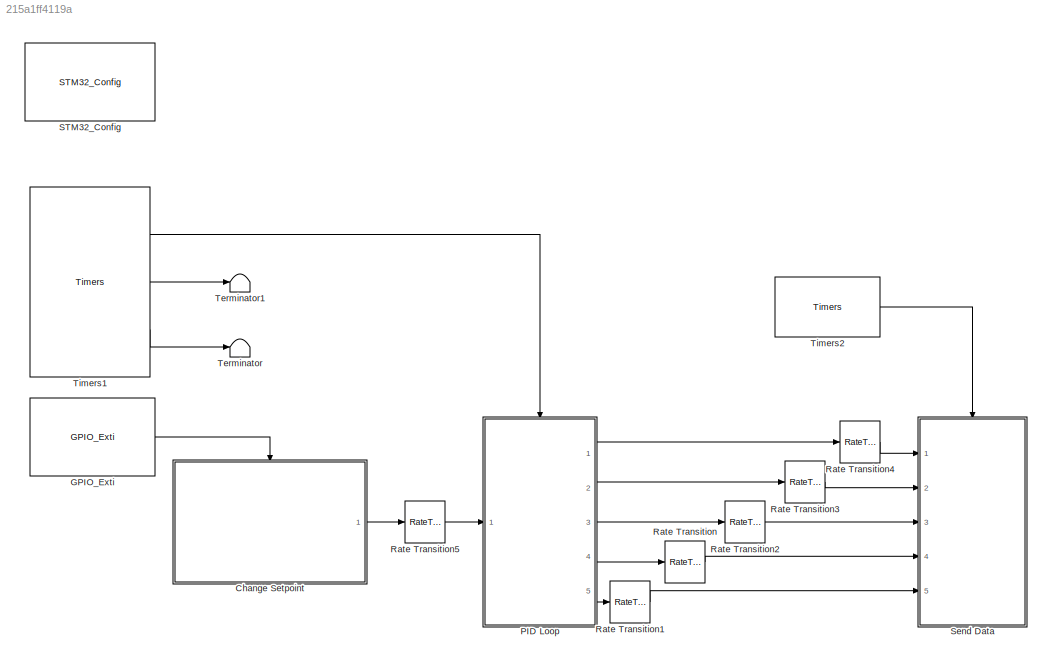
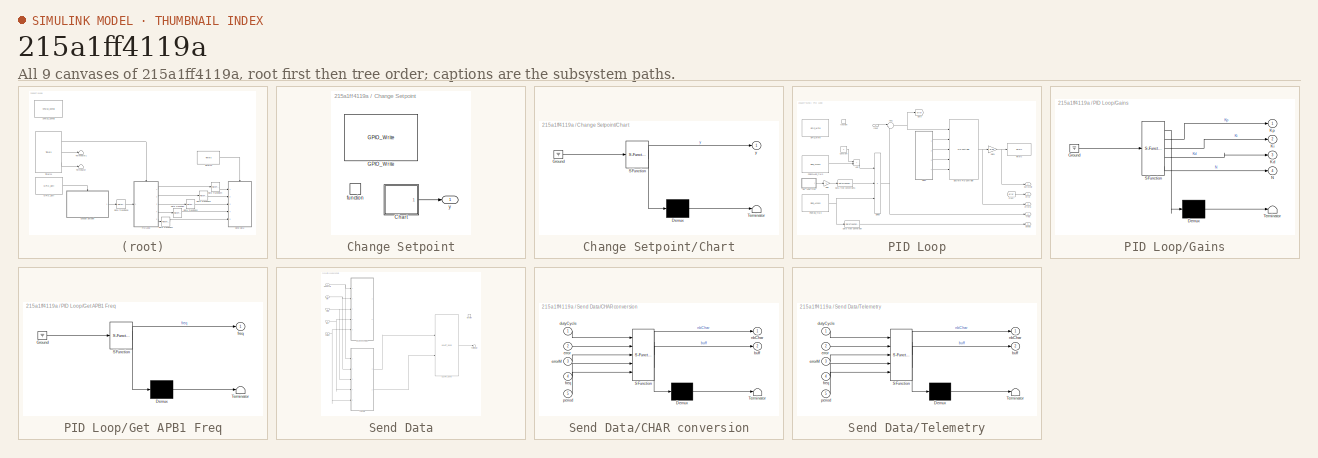
[diagram: thumbnail index - all 9 canvases of the model, root first then tree order]
MODEL slx_215a1ff4119a
KIND model
CONFIG AbsTol = auto
CONFIG EnableMultiTasking = on
CONFIG FixedStep = auto
CONFIG MaxStep = auto
CONFIG MinStep = auto
CONFIG RelTol = 1e-3
CONFIG SampleTimeConstraint = Unconstrained
CONFIG Solver = FixedStepDiscrete
CONFIG SolverName = FixedStepDiscrete
CONFIG StartTime = 0.0
CONFIG StopTime = 10.0
BLOCK [SubSystem] Change Setpoint
  Ports = [0, 1, 0, 1]
  RequestExecContextInheritance = off
  TreatAsAtomicUnit = on
BLOCK [SubSystem] Change Setpoint/Chart
  ErrorFcn = Stateflow.Translate.translate
  PermitHierarchicalResolution = ExplicitOnly
  Ports = [0, 1]
  RequestExecContextInheritance = off
  SFBlockType = Chart
  TreatAsAtomicUnit = on
BLOCK [Demux] Change Setpoint/Chart/ Demux 
  Outputs = 1
  Ports = [1, 1]
BLOCK [Ground] Change Setpoint/Chart/ Ground 
BLOCK [S-Function] Change Setpoint/Chart/ SFunction 
  EnableBusSupport = on
  FunctionName = sf_sfun
  PortCounts = [1 2]
  Ports = [1, 2]
  SFcnIsStateOwnerBlock = off
  SFunctionDeploymentMode = off
  Tag = Stateflow S-Function 5
BLOCK [Terminator] Change Setpoint/Chart/ Terminator 
BLOCK [Outport] Change Setpoint/Chart/y
BLOCK [Reference] Change Setpoint/GPIO_Write  REF=GPIO_Lib/GPIO_Write
  NameLocation = top
  Ports = []
  SourceBlock = GPIO_Lib/GPIO_Write
  SourceProductName = Target Support Package - STM32 Adapter
  SourceType = GPIO_Write
BLOCK [TriggerPort] Change Setpoint/function
  OutputDataType = int8
  Ports = []
  StatesWhenEnabling = held
  TriggerType = function-call
  VariantControl = Variant
BLOCK [Outport] Change Setpoint/y
BLOCK [Reference] GPIO_Exti  REF=GPIO_Lib/GPIO_Exti
  NameLocation = top
  Ports = [0, 1]
  SourceBlock = GPIO_Lib/GPIO_Exti
  SourceProductName = Target Support Package - STM32 Adapter
  SourceType = GPIO_Exti
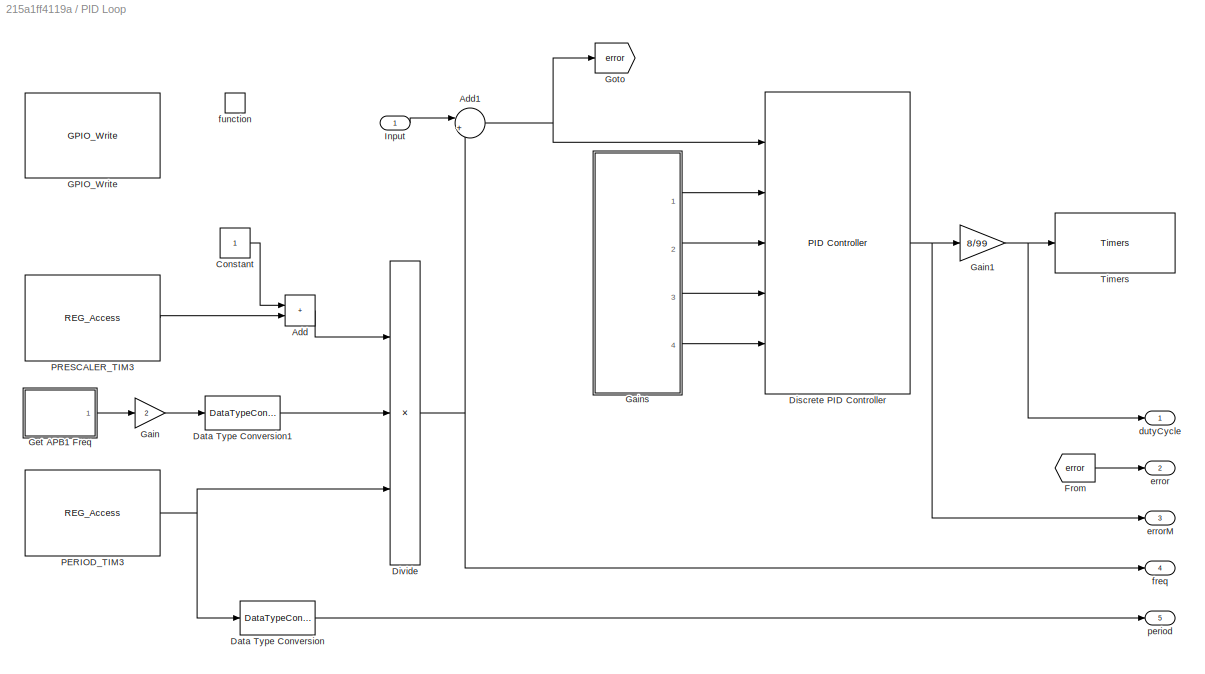
BLOCK [SubSystem] PID Loop
  Ports = [1, 5, 0, 1]
  RequestExecContextInheritance = off
  TreatAsAtomicUnit = on
BLOCK [Sum] PID Loop/Add
  IconShape = rectangular
  OutDataTypeStr = double
  Ports = [2, 1]
BLOCK [Sum] PID Loop/Add1
  Inputs = |+-
  OutDataTypeStr = double
  Ports = [2, 1]
BLOCK [Constant] PID Loop/Constant
  OutDataTypeStr = double
BLOCK [DataTypeConversion] PID Loop/Data Type Conversion
  OutDataTypeStr = uint32
  RndMeth = Floor
  SaturateOnIntegerOverflow = off
BLOCK [DataTypeConversion] PID Loop/Data Type Conversion1
  OutDataTypeStr = double
  RndMeth = Floor
  SaturateOnIntegerOverflow = off
BLOCK [Reference] PID Loop/Discrete PID Controller  REF=simulink/Continuous/PID Controller
  NameLocation = top
  Ports = [5, 1]
  SourceBlock = simulink/Continuous/PID Controller
  SourceProductBaseCode = SL
  SourceType = PID 1dof
BLOCK [Product] PID Loop/Divide
  Inputs = /*/
  OutDataTypeStr = double
  Ports = [3, 1]
BLOCK [From] PID Loop/From
  GotoTag = error
BLOCK [Reference] PID Loop/GPIO_Write  REF=GPIO_Lib/GPIO_Write
  NameLocation = top
  Ports = []
  SourceBlock = GPIO_Lib/GPIO_Write
  SourceProductName = Target Support Package - STM32 Adapter
  SourceType = GPIO_Write
BLOCK [Gain] PID Loop/Gain
  Gain = 2
  OutDataTypeStr = double
  ParamDataTypeStr = double
BLOCK [Gain] PID Loop/Gain1
  Gain = 8/99
  OutDataTypeStr = double
BLOCK [SubSystem] PID Loop/Gains
  ErrorFcn = Stateflow.Translate.translate
  PermitHierarchicalResolution = ExplicitOnly
  Ports = [0, 4]
  RequestExecContextInheritance = off
  SFBlockType = MATLAB Function
  TreatAsAtomicUnit = on
BLOCK [Demux] PID Loop/Gains/ Demux 
  Outputs = 1
  Ports = [1, 1]
BLOCK [Ground] PID Loop/Gains/ Ground 
BLOCK [S-Function] PID Loop/Gains/ SFunction 
  EnableBusSupport = on
  FunctionName = sf_sfun
  PortCounts = [1 5]
  Ports = [1, 5]
  SFcnIsStateOwnerBlock = off
  SFunctionDeploymentMode = off
  Tag = Stateflow S-Function 4
BLOCK [Terminator] PID Loop/Gains/ Terminator 
BLOCK [Outport] PID Loop/Gains/Kd
  Port = 3
BLOCK [Outport] PID Loop/Gains/Ki
  Port = 2
BLOCK [Outport] PID Loop/Gains/Kp
BLOCK [Outport] PID Loop/Gains/N
  Port = 4
BLOCK [SubSystem] PID Loop/Get APB1 Freq
  ErrorFcn = Stateflow.Translate.translate
  PermitHierarchicalResolution = ExplicitOnly
  Ports = [0, 1]
  RequestExecContextInheritance = off
  SFBlockType = MATLAB Function
  TreatAsAtomicUnit = on
BLOCK [Demux] PID Loop/Get APB1 Freq/ Demux 
  Outputs = 1
  Ports = [1, 1]
BLOCK [Ground] PID Loop/Get APB1 Freq/ Ground 
BLOCK [S-Function] PID Loop/Get APB1 Freq/ SFunction 
  EnableBusSupport = on
  FunctionName = sf_sfun
  PortCounts = [1 2]
  Ports = [1, 2]
  SFcnIsStateOwnerBlock = off
  SFunctionDeploymentMode = off
  Tag = Stateflow S-Function 1
BLOCK [Terminator] PID Loop/Get APB1 Freq/ Terminator 
BLOCK [Outport] PID Loop/Get APB1 Freq/freq
BLOCK [Goto] PID Loop/Goto
  GotoTag = error
BLOCK [Inport] PID Loop/Input
BLOCK [Reference] PID Loop/PERIOD_TIM3  REF=REG_Lib/REG_Access
  NameLocation = top
  Ports = [0, 1]
  SourceBlock = REG_Lib/REG_Access
  SourceProductName = Target Support Package - STM32 Adapter
  SourceType = REG_Access
BLOCK [Reference] PID Loop/PRESCALER_TIM3  REF=REG_Lib/REG_Access
  NameLocation = top
  Ports = [0, 1]
  SourceBlock = REG_Lib/REG_Access
  SourceProductName = Target Support Package - STM32 Adapter
  SourceType = REG_Access
BLOCK [Reference] PID Loop/Timers  REF=TIMERS_Lib/Timers
  NameLocation = top
  Ports = [1]
  SourceBlock = TIMERS_Lib/Timers
  SourceProductName = Target Support Package - STM32 Adapter
  SourceType = Timers
BLOCK [Outport] PID Loop/dutyCycle
BLOCK [Outport] PID Loop/error
  Port = 2
BLOCK [Outport] PID Loop/errorM
  Port = 3
BLOCK [Outport] PID Loop/freq
  Port = 4
BLOCK [TriggerPort] PID Loop/function
  Ports = []
  StatesWhenEnabling = held
  TriggerType = function-call
  VariantControl = Variant
BLOCK [Outport] PID Loop/period
  Port = 5
BLOCK [RateTransition] Rate Transition
  Deterministic = off
BLOCK [RateTransition] Rate Transition1
  Deterministic = off
BLOCK [RateTransition] Rate Transition2
  Deterministic = off
BLOCK [RateTransition] Rate Transition3
  Deterministic = off
BLOCK [RateTransition] Rate Transition4
  Deterministic = off
BLOCK [RateTransition] Rate Transition5
  Deterministic = off
BLOCK [Reference] STM32_Config  REF=STM32_Config_Lib/STM32_Config
  NameLocation = top
  Ports = []
  Priority = 0
  SourceBlock = STM32_Config_Lib/STM32_Config
  SourceProductName = Target Support Package - STM32 Adapter
  SourceType = STM32_Config
BLOCK [SubSystem] Send Data
  Ports = [5, 0, 0, 1]
  RequestExecContextInheritance = off
  TreatAsAtomicUnit = on
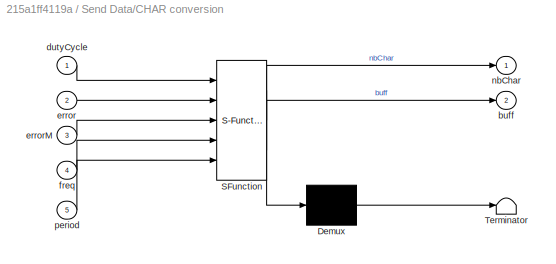
BLOCK [SubSystem] Send Data/CHAR conversion
  Commented = on
  ErrorFcn = Stateflow.Translate.translate
  PermitHierarchicalResolution = ExplicitOnly
  Ports = [5, 2]
  RequestExecContextInheritance = off
  SFBlockType = MATLAB Function
  TreatAsAtomicUnit = on
BLOCK [Demux] Send Data/CHAR conversion/ Demux 
  Outputs = 1
  Ports = [1, 1]
BLOCK [S-Function] Send Data/CHAR conversion/ SFunction 
  EnableBusSupport = on
  FunctionName = sf_sfun
  PortCounts = [5 3]
  Ports = [5, 3]
  SFcnIsStateOwnerBlock = off
  SFunctionDeploymentMode = off
  Tag = Stateflow S-Function 2
BLOCK [Terminator] Send Data/CHAR conversion/ Terminator 
BLOCK [Outport] Send Data/CHAR conversion/buff
  Port = 2
  VectorParamsAs1DForOutWhenUnconnected = off
BLOCK [Inport] Send Data/CHAR conversion/dutyCycle
BLOCK [Inport] Send Data/CHAR conversion/error
  Port = 2
BLOCK [Inport] Send Data/CHAR conversion/errorM
  Port = 3
BLOCK [Inport] Send Data/CHAR conversion/freq
  Port = 4
BLOCK [Outport] Send Data/CHAR conversion/nbChar
  VectorParamsAs1DForOutWhenUnconnected = off
BLOCK [Inport] Send Data/CHAR conversion/period
  Port = 5
BLOCK [SubSystem] Send Data/Telemetry
  ErrorFcn = Stateflow.Translate.translate
  PermitHierarchicalResolution = ExplicitOnly
  Ports = [5, 2]
  RequestExecContextInheritance = off
  SFBlockType = MATLAB Function
  TreatAsAtomicUnit = on
BLOCK [Demux] Send Data/Telemetry/ Demux 
  Outputs = 1
  Ports = [1, 1]
BLOCK [S-Function] Send Data/Telemetry/ SFunction 
  EnableBusSupport = on
  FunctionName = sf_sfun
  PortCounts = [5 3]
  Ports = [5, 3]
  SFcnIsStateOwnerBlock = off
  SFunctionDeploymentMode = off
  Tag = Stateflow S-Function 3
BLOCK [Terminator] Send Data/Telemetry/ Terminator 
BLOCK [Outport] Send Data/Telemetry/buff
  Port = 2
  VectorParamsAs1DForOutWhenUnconnected = off
BLOCK [Inport] Send Data/Telemetry/dutyCycle
BLOCK [Inport] Send Data/Telemetry/error
  Port = 2
BLOCK [Inport] Send Data/Telemetry/errorM
  Port = 3
BLOCK [Inport] Send Data/Telemetry/freq
  Port = 4
BLOCK [Outport] Send Data/Telemetry/nbChar
  VectorParamsAs1DForOutWhenUnconnected = off
BLOCK [Inport] Send Data/Telemetry/period
  Port = 5
BLOCK [Terminator] Send Data/Terminator
BLOCK [Reference] Send Data/USART_Send  REF=USART_Lib/USART_Send
  NameLocation = top
  Ports = [2, 1]
  SourceBlock = USART_Lib/USART_Send
  SourceProductName = Target Support Package - STM32 Adapter
  SourceType = USART_Send
BLOCK [Inport] Send Data/dutyCycle
BLOCK [Inport] Send Data/error
  Port = 2
BLOCK [Inport] Send Data/errorM
  Port = 3
BLOCK [Inport] Send Data/freq
  Port = 4
BLOCK [TriggerPort] Send Data/function
  Ports = []
  StatesWhenEnabling = held
  TriggerType = function-call
  VariantControl = Variant
BLOCK [Inport] Send Data/period
  Port = 5
BLOCK [Terminator] Terminator
BLOCK [Terminator] Terminator1
BLOCK [Reference] Timers1  REF=TIMERS_Lib/Timers
  NameLocation = top
  Ports = [0, 3]
  SourceBlock = TIMERS_Lib/Timers
  SourceProductName = Target Support Package - STM32 Adapter
  SourceType = Timers
BLOCK [Reference] Timers2  REF=TIMERS_Lib/Timers
  NameLocation = top
  Ports = [0, 1]
  SourceBlock = TIMERS_Lib/Timers
  SourceProductName = Target Support Package - STM32 Adapter
  SourceType = Timers
LINE Change Setpoint/Chart:1 -> Change Setpoint/y:1
LINE Change Setpoint:1 -> Rate Transition5:1
LINE GPIO_Exti:1 -> Change Setpoint:trigger
NET PID Loop/Add1:1 -> PID Loop/Discrete PID Controller:1, PID Loop/Goto:1
LINE PID Loop/Add:1 -> PID Loop/Divide:1
LINE PID Loop/Constant:1 -> PID Loop/Add:1
LINE PID Loop/Data Type Conversion1:1 -> PID Loop/Divide:2
LINE PID Loop/Data Type Conversion:1 -> PID Loop/period:1
NET PID Loop/Discrete PID Controller:1 -> PID Loop/Gain1:1, PID Loop/errorM:1
NET PID Loop/Divide:1 -> PID Loop/Add1:2, PID Loop/freq:1
LINE PID Loop/From:1 -> PID Loop/error:1
NET PID Loop/Gain1:1 -> PID Loop/Timers:1, PID Loop/dutyCycle:1
LINE PID Loop/Gain:1 -> PID Loop/Data Type Conversion1:1
LINE PID Loop/Gains:1 -> PID Loop/Discrete PID Controller:2
LINE PID Loop/Gains:2 -> PID Loop/Discrete PID Controller:3
LINE PID Loop/Gains:3 -> PID Loop/Discrete PID Controller:4
LINE PID Loop/Gains:4 -> PID Loop/Discrete PID Controller:5
LINE PID Loop/Get APB1 Freq:1 -> PID Loop/Gain:1
LINE PID Loop/Input:1 -> PID Loop/Add1:1
NET PID Loop/PERIOD_TIM3:1 -> PID Loop/Data Type Conversion:1, PID Loop/Divide:3
LINE PID Loop/PRESCALER_TIM3:1 -> PID Loop/Add:2
LINE PID Loop:1 -> Rate Transition4:1
LINE PID Loop:2 -> Rate Transition3:1
LINE PID Loop:3 -> Rate Transition2:1
LINE PID Loop:4 -> Rate Transition:1
LINE PID Loop:5 -> Rate Transition1:1
LINE Rate Transition1:1 -> Send Data:5
LINE Rate Transition2:1 -> Send Data:3
LINE Rate Transition3:1 -> Send Data:2
LINE Rate Transition4:1 -> Send Data:1
LINE Rate Transition5:1 -> PID Loop:1
LINE Rate Transition:1 -> Send Data:4
LINE Send Data/Telemetry:1 -> Send Data/USART_Send:1
LINE Send Data/Telemetry:2 -> Send Data/USART_Send:2
LINE Send Data/USART_Send:1 -> Send Data/Terminator:1
NET Send Data/dutyCycle:1 -> Send Data/CHAR conversion:1, Send Data/Telemetry:1
NET Send Data/error:1 -> Send Data/CHAR conversion:2, Send Data/Telemetry:2
NET Send Data/errorM:1 -> Send Data/CHAR conversion:3, Send Data/Telemetry:3
NET Send Data/freq:1 -> Send Data/CHAR conversion:4, Send Data/Telemetry:4
NET Send Data/period:1 -> Send Data/CHAR conversion:5, Send Data/Telemetry:5
LINE Timers1:1 -> PID Loop:trigger
LINE Timers1:2 -> Terminator1:1
LINE Timers1:3 -> Terminator:1
LINE Timers2:1 -> Send Data:trigger
note: NET lines group one-source signal fan-out (src -> all destinations, sorted); 1:1 wires keep LINE
CHART PID Loop/Get APB1 Freq states=1 transitions=1
  STATE_LABEL 'eML_blk_kernel()'
  STATE_LABEL "SCRIPT:\nfunction freq = fcn()\nif coder.target('Sfun')\n    % Executing in MATLAB, Buff is null\n    freq = double(0);\nelse\n    coder.cinclude('stm32f4xx_hal_rcc.h');\n    \n    % Executing in the generated code.\n    freq = coder.ceval('HAL_RCC_GetPCLK1Freq');\nend\nend\n"
CHART Send Data/CHAR conversion states=1 transitions=1
  STATE_LABEL 'eML_blk_kernel()'
  STATE_LABEL "SCRIPT:\nfunction [nbChar, buff] = convert(dutyCycle,error,errorM,freq,period)\nif coder.target('Sfun')\n    % Executing in MATLAB, Buff is null\n    buff = uint32(0);\n    nbChar = uint16(0);\nelse\n    coder.cinclude('stdio.h');\n    coder.cinclude('main.h');\n    coder.cinclude('getBuffPtr.h');\n\n    % Executing in the generated code.\n    string = char(zeros(1,90));\n    stringSize = uint16(size(string,2)...<+368ch>"
CHART Send Data/Telemetry states=1 transitions=1
  STATE_LABEL 'eML_blk_kernel()'
  STATE_LABEL "SCRIPT:\nfunction [nbChar, buff] = convert(dutyCycle,error,errorM,freq,period)\nif coder.target('Sfun')\n    % Executing in MATLAB, Buff is null\n    buff = uint32(0);\n    nbChar = uint16(0);\nelse\n    coder.cinclude('stdio.h');\n    coder.cinclude('main.h');\n    coder.cinclude('getBuffPtr.h');\n\n    % Executing in the generated code.\n    string = char(zeros(1,50));\n    stringSize = uint16(size(string,2)...<+292ch>"
CHART PID Loop/Gains states=1 transitions=1
  STATE_LABEL 'eML_blk_kernel()'
  STATE_LABEL 'SCRIPT:\nfunction [Kp,Ki,Kd,N] = fcn()\nKp = 15.0;\nKi = 10.0;\nKd = 0.5;\nN = 100.0;\nend\n'
CHART Change Setpoint/Chart states=4 transitions=5
  STATE_LABEL 'S1\ny=150.00;'
  STATE_LABEL 'S2\ny=300.00;'
  STATE_LABEL 'S4\ny=600.00;'
  STATE_LABEL 'S3\ny=450.00;'
CHART  states=0 transitions=0
CHART  states=0 transitions=0
CHART  states=0 transitions=0
CHART  states=0 transitions=0
CHART  states=0 transitions=0
